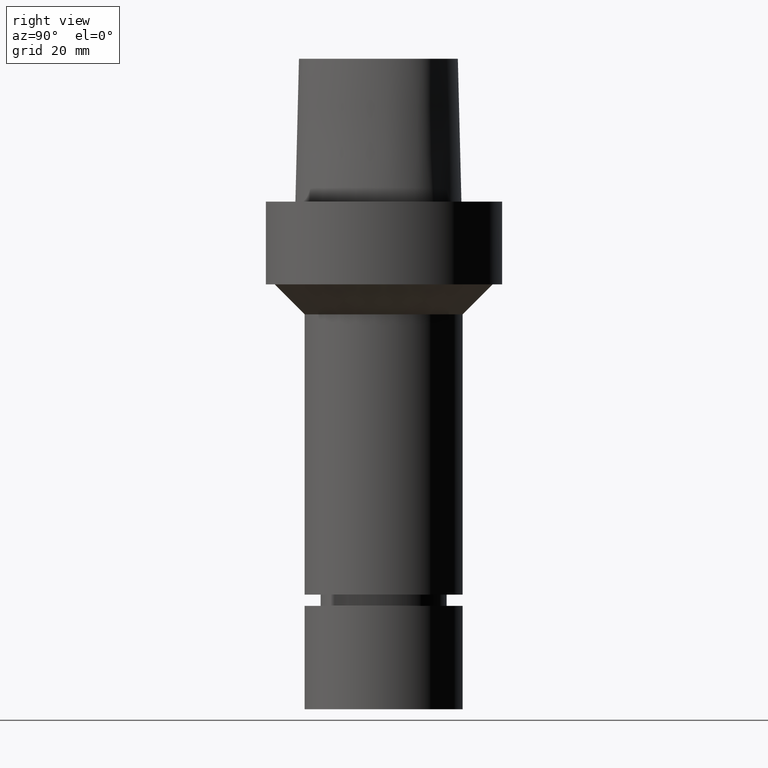
[diagram: clean part render]
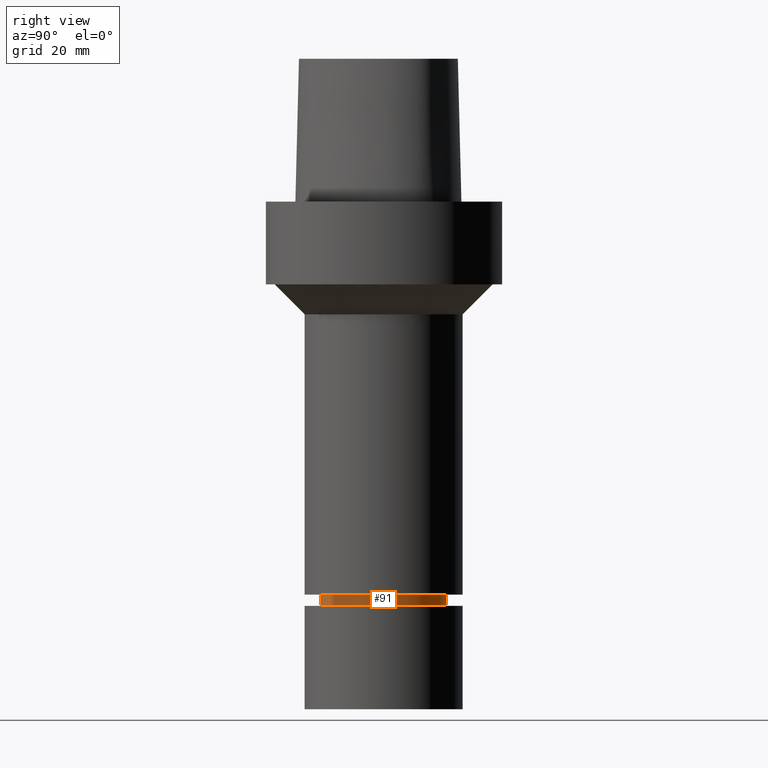
[diagram: same view with one face highlighted and labeled with its STEP entity id]
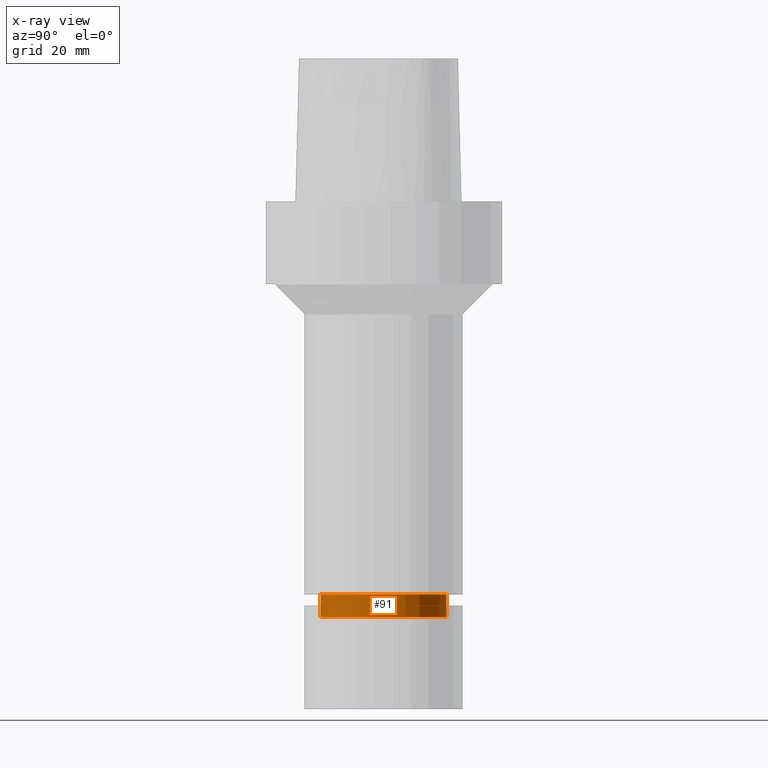
[diagram: x-ray of the same camera — body ghosted, the highlighted face saturated]
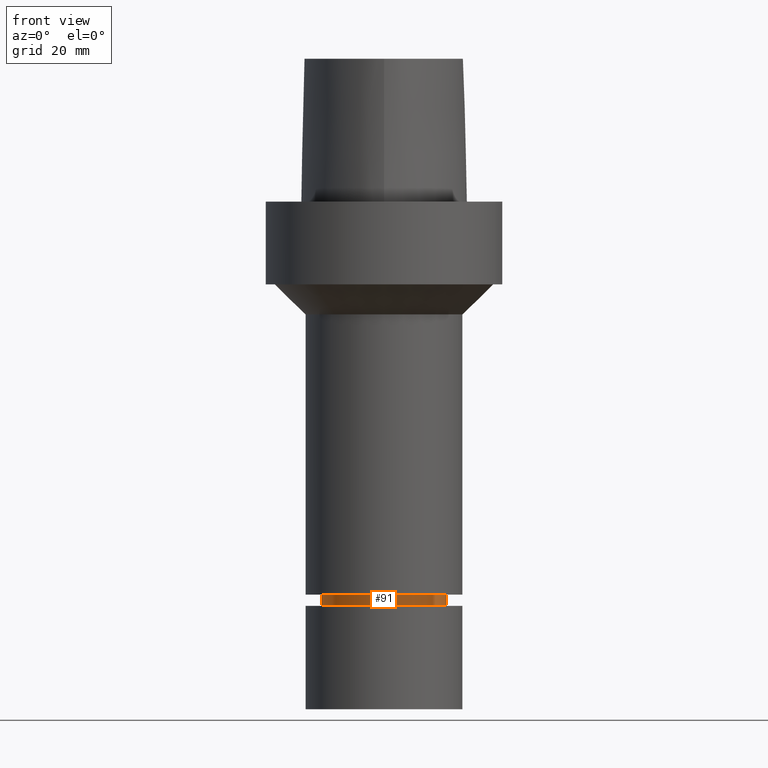
[diagram: same view with one face highlighted and labeled with its STEP entity id]
A machine part, right view. The second image highlights one B-rep face of the part: STEP entity #91.
The next image is the same camera in x-ray: the body ghosted, the highlighted face saturated — about 0% of this face is hidden behind the body in this view.
A second angle (front view) of the same face is appended — the face is thin or edge-on in the first view.
In plain terms, the highlighted cylindrical surface (bore or boss wall) has radius 16.75 mm, axis along (0, 0, -1).
Its self-contained STEP definition (entity closure, byte-faithful):
#91=ADVANCED_FACE('Unnamed[1]',(#220,#221),#222,.T.);
#93=EDGE_CURVE('Unnamed[1]',#224,#224,#225,.T.);
#162=EDGE_CURVE('Unnamed[1]',#322,#322,#323,.T.);
#220=FACE_BOUND('',#454,.T.);
#221=FACE_BOUND('',#455,.T.);
#222=CYLINDRICAL_SURFACE('',#456,16.7499999999962);
#224=VERTEX_POINT('',#459);
#225=CIRCLE('',#460,16.7499999999907);
#322=VERTEX_POINT('',#718);
#323=CIRCLE('',#719,16.7500000000017);
#454=EDGE_LOOP('',(#764));
#455=EDGE_LOOP('',(#765));
#456=AXIS2_PLACEMENT_3D('',#766,#767,#768);
#459=CARTESIAN_POINT('',(6.39877952554487E-015,16.7499999999907,-104.499999999999));
#460=AXIS2_PLACEMENT_3D('',#769,#770,#771);
#718=CARTESIAN_POINT('',(6.7641727903392E-015,16.7500000000017,-110.467324865401));
#719=AXIS2_PLACEMENT_3D('',#868,#869,#870);
#764=ORIENTED_EDGE('',*,*,#162,.F.);
#765=ORIENTED_EDGE('',*,*,#93,.T.);
#766=CARTESIAN_POINT('',(6.58147615794204E-015,1.31629523158841E-014,-107.4836624327));
#767=DIRECTION('',(6.12323399573677E-017,1.22464679914735E-016,-1.0));
#768=DIRECTION('',(-1.23259516440783E-032,1.0,1.22464679914735E-016));
#769=CARTESIAN_POINT('',(6.39877952554487E-015,1.27975590510897E-014,-104.499999999999));
#770=DIRECTION('',(6.12323399573677E-017,1.22464679914735E-016,-1.0));
#771=DIRECTION('',(-1.23259516440783E-032,1.0,1.22464679914735E-016));
#868=CARTESIAN_POINT('',(6.7641727903392E-015,1.35283455806784E-014,-110.467324865401));
#869=DIRECTION('',(6.12323399573676E-017,1.22464679914735E-016,-1.0));
#870=DIRECTION('',(-1.23259516440783E-032,1.0,1.22464679914735E-016));